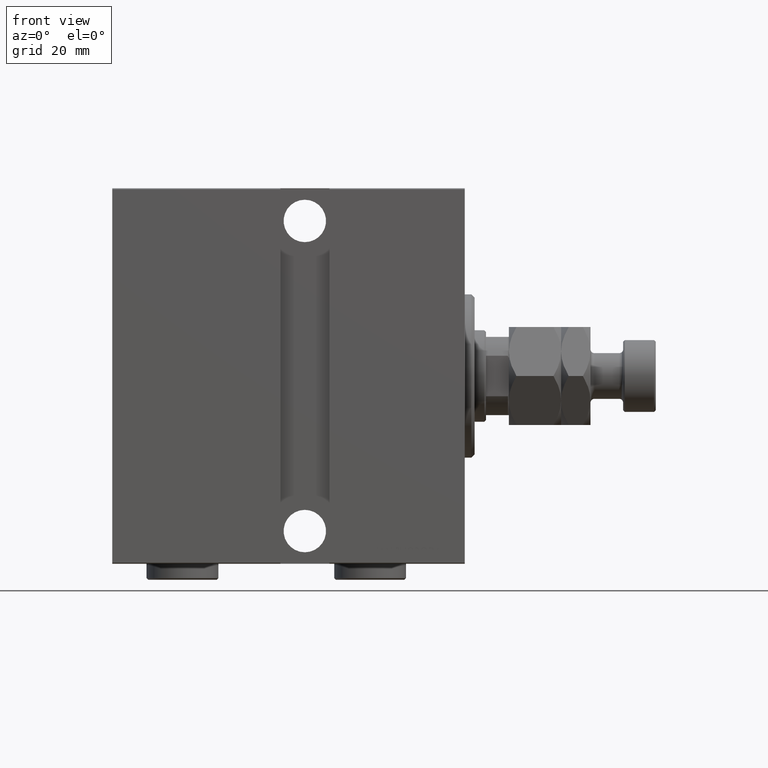
[diagram: clean part render]
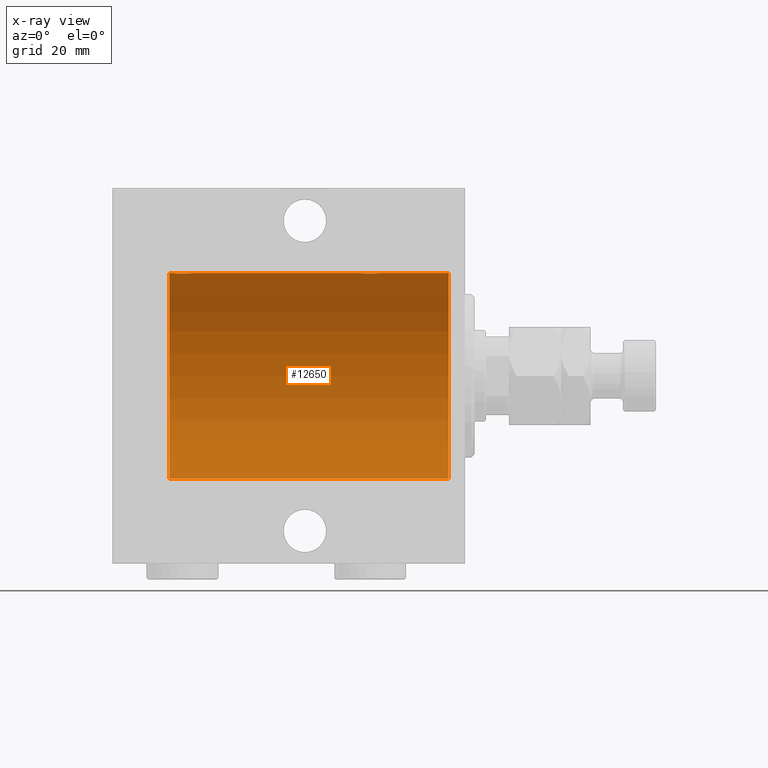
[diagram: x-ray — body ghosted, one internal face saturated and labeled with its STEP entity id]
A machine part, front view, then the same camera in x-ray: the body is ghosted and one INTERNAL B-rep face — a face not visible from any outside direction — is saturated and labeled: STEP entity #12650.
In plain terms, the highlighted cylindrical surface (partial cylindrical patch) has radius 31.5 mm, axis along (1, 0, -0).
Its self-contained STEP definition (entity closure, byte-faithful):
#141 = CARTESIAN_POINT ( 'NONE',  ( 86.69582294439439352, -3.000152387858501690, 31.35680286115500337 ) ) ;
#739 = VERTEX_POINT ( 'NONE', #43214 ) ;
#1024 = EDGE_CURVE ( 'NONE', #44973, #27381, #12822, .T. ) ;
#1679 = CARTESIAN_POINT ( 'NONE',  ( 27.16956308512997964, -2.384935707362441537, 31.40977595730572958 ) ) ;
#1690 = EDGE_CURVE ( 'NONE', #20167, #27381, #34671, .T. ) ;
#1909 = CARTESIAN_POINT ( 'NONE',  ( 26.61498557723073333, -1.830470878313879668, 31.44719957596828763 ) ) ;
#2509 = B_SPLINE_CURVE_WITH_KNOTS ( 'NONE', 3,
 ( #4477, #43338, #11648, #18612, #44238, #4932, #22993, #1909, #32922, #32700, #1679, #30141, #15814, #33374, #40550, #26678, #15126, #29240, #18835, #19066, #44014, #12334, #29686, #16046, #39868, #36157, #12102, #8178, #33147, #40098, #15584, #12558 ),
 .UNSPECIFIED., .F., .F.,
 ( 4, 2, 2, 2, 2, 2, 2, 2, 2, 2, 2, 2, 2, 2, 2, 4 ),
 ( 0.009384682587134636142, 0.009971088165454035368, 0.01055749374377343633, 0.01114389932209283729, 0.01173030490041223652, 0.01231671047873163748, 0.01290311605705103844, 0.01348952163537044113, 0.01407592721368984209, 0.01466233279200924305, 0.01524873837032864402, 0.01583514394864804498, 0.01642154952696744594, 0.01700795510528684690, 0.01759436068360624786, 0.01876717184024504284 ),
 .UNSPECIFIED. ) ;
#3372 = CARTESIAN_POINT ( 'NONE',  ( 83.49999999999998579, -2.116947682205846230E-23, 31.50000000000000000 ) ) ;
#3613 = DIRECTION ( 'NONE',  ( -1.000000000000000000, -0.000000000000000000, -0.000000000000000000 ) ) ;
#4477 = CARTESIAN_POINT ( 'NONE',  ( 26.00000000000000355, -2.117263226567934635E-23, 31.50000000000000000 ) ) ;
#4819 = ORIENTED_EDGE ( 'NONE', *, *, #29458, .T. ) ;
#4932 = CARTESIAN_POINT ( 'NONE',  ( 26.30285761163299441, -1.328004386210307919, 31.47251238182140298 ) ) ;
#4969 = EDGE_LOOP ( 'NONE', ( #37711, #39705, #18812, #43573, #4819, #11709, #35675, #14820 ) ) ;
#5383 = CARTESIAN_POINT ( 'NONE',  ( 89.19529642359012200, -1.331741824817668673, 31.47235367475394341 ) ) ;
#7087 = CARTESIAN_POINT ( 'NONE',  ( 84.99543714992999810, -2.602826974226411849, 31.39247100434485560 ) ) ;
#7784 = VECTOR ( 'NONE', #24029, 1000.000000000000000 ) ;
#8178 = CARTESIAN_POINT ( 'NONE',  ( 31.60192140439154684, -1.506272792558327467, 31.46439306106696421 ) ) ;
#9231 = EDGE_CURVE ( 'NONE', #21949, #13310, #30937, .T. ) ;
#9865 = CARTESIAN_POINT ( 'NONE',  ( 88.32704225370268603, -2.387531469909783599, 31.40957782495775419 ) ) ;
#10532 = LINE ( 'NONE', #41768, #44968 ) ;
#10550 = CARTESIAN_POINT ( 'NONE',  ( 83.89582218725267637, -1.502389880413007806, 31.46458023642405166 ) ) ;
#11026 = CARTESIAN_POINT ( 'NONE',  ( 89.42020662950044141, -0.7905881588836197738, 31.49214662150070509 ) ) ;
#11648 = CARTESIAN_POINT ( 'NONE',  ( 26.01898490608483527, -0.3904857149112059278, 31.49817436802766224 ) ) ;
#11709 = ORIENTED_EDGE ( 'NONE', *, *, #9231, .F. ) ;
#11824 = EDGE_CURVE ( 'NONE', #21949, #12904, #28368, .T. ) ;
#12102 = CARTESIAN_POINT ( 'NONE',  ( 31.38246872266632082, -1.833765390051044220, 31.44700610425690712 ) ) ;
#12334 = CARTESIAN_POINT ( 'NONE',  ( 30.32865414687508832, -2.696917666262911961, 31.38442820068732075 ) ) ;
#12558 = CARTESIAN_POINT ( 'NONE',  ( 32.00000000000000000, -2.212280765433387153E-16, 31.50000000000000000 ) ) ;
#12650 = ADVANCED_FACE ( 'NONE', ( #35304 ), #39020, .F. ) ;
#12822 = CIRCLE ( 'NONE', #16538, 31.50000000000000000 ) ;
#12904 = VERTEX_POINT ( 'NONE', #44023 ) ;
#13310 = VERTEX_POINT ( 'NONE', #27252 ) ;
#13333 = CARTESIAN_POINT ( 'NONE',  ( 85.53055544341474103, -2.845838211243347793, 31.37127560316186603 ) ) ;
#13426 = VECTOR ( 'NONE', #32137, 1000.000000000000000 ) ;
#13557 = CARTESIAN_POINT ( 'NONE',  ( 83.80285761163298730, -1.328004386210312138, 31.47251238182140298 ) ) ;
#14260 = CARTESIAN_POINT ( 'NONE',  ( 87.46515729810640494, -2.847307171789049018, 31.37114183851420179 ) ) ;
#14820 = ORIENTED_EDGE ( 'NONE', *, *, #33860, .F. ) ;
#15126 = CARTESIAN_POINT ( 'NONE',  ( 28.79953541025905395, -2.999845816735302151, 31.35683219171744796 ) ) ;
#15584 = CARTESIAN_POINT ( 'NONE',  ( 32.00000000000000000, -0.3965830985361757932, 31.50000000000000711 ) ) ;
#15775 = DIRECTION ( 'NONE',  ( -1.000000000000000000, 0.000000000000000000, 0.000000000000000000 ) ) ;
#15814 = CARTESIAN_POINT ( 'NONE',  ( 27.66760041900836242, -2.695056442718537060, 31.38458855656185875 ) ) ;
#16046 = CARTESIAN_POINT ( 'NONE',  ( 30.82704225370269668, -2.387531469909775605, 31.40957782495775419 ) ) ;
#16538 = AXIS2_PLACEMENT_3D ( 'NONE', #18834, #31839, #43786 ) ;
#17344 = CARTESIAN_POINT ( 'NONE',  ( 90.50000000000000000, 0.000000000000000000, 31.50000000000000000 ) ) ;
#17510 = CARTESIAN_POINT ( 'NONE',  ( 83.49999999999998579, -0.1958045626907475578, 31.50000000000000000 ) ) ;
#17743 = CARTESIAN_POINT ( 'NONE',  ( 86.10465888999905815, -2.980257240990072276, 31.35872356503798031 ) ) ;
#17804 = CARTESIAN_POINT ( 'NONE',  ( 90.50000000000000000, 0.000000000000000000, 31.50000000000000000 ) ) ;
#18530 = EDGE_CURVE ( 'NONE', #739, #44973, #10532, .T. ) ;
#18612 = CARTESIAN_POINT ( 'NONE',  ( 26.09580549261944071, -0.7775502215293879082, 31.49099686045559565 ) ) ;
#18812 = ORIENTED_EDGE ( 'NONE', *, *, #1024, .T. ) ;
#18834 = CARTESIAN_POINT ( 'NONE',  ( 5.000000000000004441, 0.000000000000000000, 0.000000000000000000 ) ) ;
#18835 = CARTESIAN_POINT ( 'NONE',  ( 29.39114547339941907, -2.980809450819707163, 31.35867074198615967 ) ) ;
#19066 = CARTESIAN_POINT ( 'NONE',  ( 29.77469094434372465, -2.904836261170110845, 31.36579955910872997 ) ) ;
#19246 = VERTEX_POINT ( 'NONE', #41963 ) ;
#20167 = VERTEX_POINT ( 'NONE', #40333 ) ;
#20232 = VECTOR ( 'NONE', #31210, 1000.000000000000000 ) ;
#21220 = CARTESIAN_POINT ( 'NONE',  ( 85.16760041900836598, -2.695056442718549050, 31.38458855656186941 ) ) ;
#21467 = DIRECTION ( 'NONE',  ( 0.000000000000000000, 0.000000000000000000, 1.000000000000000000 ) ) ;
#21949 = VERTEX_POINT ( 'NONE', #24033 ) ;
#22991 = CARTESIAN_POINT ( 'NONE',  ( 88.75824501903265684, -1.984587626072078281, 31.43772577203671048 ) ) ;
#22993 = CARTESIAN_POINT ( 'NONE',  ( 26.39582218725271190, -1.502389880413000922, 31.46458023642405166 ) ) ;
#24029 = DIRECTION ( 'NONE',  ( -1.000000000000000000, -0.000000000000000000, -0.000000000000000000 ) ) ;
#24033 = CARTESIAN_POINT ( 'NONE',  ( 83.49999999999998579, -2.116947682205846230E-23, 31.50000000000000000 ) ) ;
#24934 = CARTESIAN_POINT ( 'NONE',  ( 84.51539640075333182, -2.258226318633794083, 31.41925597582825702 ) ) ;
#26678 = CARTESIAN_POINT ( 'NONE',  ( 28.60465888999905815, -2.980257240990060286, 31.35872356503798031 ) ) ;
#27252 = CARTESIAN_POINT ( 'NONE',  ( 32.00000000000000000, -2.212280765433387153E-16, 31.50000000000000000 ) ) ;
#27381 = VERTEX_POINT ( 'NONE', #42953 ) ;
#27455 = CARTESIAN_POINT ( 'NONE',  ( 87.27469094434370334, -2.904836261170119283, 31.36579955910872997 ) ) ;
#27567 = AXIS2_PLACEMENT_3D ( 'NONE', #32886, #15775, #32445 ) ;
#27680 = CARTESIAN_POINT ( 'NONE',  ( 84.23904537543869253, -1.981494824113336550, 31.43792153503157394 ) ) ;
#28147 = CARTESIAN_POINT ( 'NONE',  ( 83.59580549261940519, -0.7775502215293890185, 31.49099686045558144 ) ) ;
#28368 = B_SPLINE_CURVE_WITH_KNOTS ( 'NONE', 3,
 ( #3372, #17510, #45696, #28147, #30914, #13557, #10550, #45020, #27680, #24934, #38766, #7087, #21220, #13333, #35293, #17743, #31838, #141, #39010, #27455, #14260, #28380, #41559, #9865, #42948, #22991, #40548, #37061, #5383, #11026, #36838, #33603 ),
 .UNSPECIFIED., .F., .F.,
 ( 4, 2, 2, 2, 2, 2, 2, 2, 2, 2, 2, 2, 2, 2, 2, 4 ),
 ( 0.009384682587134656959, 0.009971088165454059654, 0.01055749374377346235, 0.01114389932209286505, 0.01173030490041226774, 0.01231671047873167044, 0.01290311605705107487, 0.01348952163537047583, 0.01407592721368988026, 0.01466233279200928122, 0.01524873837032868565, 0.01583514394864808661, 0.01642154952696749104, 0.01700795510528689200, 0.01759436068360629296, 0.01876717184024508447 ),
 .UNSPECIFIED. ) ;
#28380 = CARTESIAN_POINT ( 'NONE',  ( 87.82865414687509542, -2.696917666262918623, 31.38442820068732075 ) ) ;
#29240 = CARTESIAN_POINT ( 'NONE',  ( 29.19582294439440062, -3.000152387858491476, 31.35680286115500337 ) ) ;
#29458 = EDGE_CURVE ( 'NONE', #20167, #13310, #2509, .T. ) ;
#29686 = CARTESIAN_POINT ( 'NONE',  ( 30.50098156296147422, -2.604888532024794312, 31.39229907792057972 ) ) ;
#30141 = CARTESIAN_POINT ( 'NONE',  ( 27.49543714993000521, -2.602826974226399859, 31.39247100434484850 ) ) ;
#30914 = CARTESIAN_POINT ( 'NONE',  ( 83.65339536257499731, -0.9669616078782038437, 31.48567319468627446 ) ) ;
#30937 = LINE ( 'NONE', #45042, #7784 ) ;
#31210 = DIRECTION ( 'NONE',  ( -1.000000000000000000, -0.000000000000000000, -0.000000000000000000 ) ) ;
#31231 = CARTESIAN_POINT ( 'NONE',  ( 5.000000000000004441, 3.857637417314162689E-15, -31.50000000000000000 ) ) ;
#31430 = LINE ( 'NONE', #17804, #13426 ) ;
#31838 = CARTESIAN_POINT ( 'NONE',  ( 86.29953541025902553, -2.999845816735311921, 31.35683219171744796 ) ) ;
#31839 = DIRECTION ( 'NONE',  ( -1.000000000000000000, 0.000000000000000000, 0.000000000000000000 ) ) ;
#31999 = CIRCLE ( 'NONE', #27567, 31.50000000000000000 ) ;
#32137 = DIRECTION ( 'NONE',  ( -1.000000000000000000, -0.000000000000000000, -0.000000000000000000 ) ) ;
#32445 = DIRECTION ( 'NONE',  ( 0.000000000000000000, 0.000000000000000000, 1.000000000000000000 ) ) ;
#32700 = CARTESIAN_POINT ( 'NONE',  ( 27.01539640075336379, -2.258226318633789642, 31.41925597582827123 ) ) ;
#32886 = CARTESIAN_POINT ( 'NONE',  ( 90.50000000000000000, 0.000000000000000000, 0.000000000000000000 ) ) ;
#32922 = CARTESIAN_POINT ( 'NONE',  ( 26.73904537543871029, -1.981494824113332998, 31.43792153503156683 ) ) ;
#33147 = CARTESIAN_POINT ( 'NONE',  ( 31.69529642359011135, -1.331741824817660236, 31.47235367475394341 ) ) ;
#33374 = CARTESIAN_POINT ( 'NONE',  ( 28.03055544341478367, -2.845838211243338023, 31.37127560316188024 ) ) ;
#33603 = CARTESIAN_POINT ( 'NONE',  ( 89.50000000000000000, 3.986776180743416568E-16, 31.50000000000000000 ) ) ;
#33860 = EDGE_CURVE ( 'NONE', #19246, #12904, #31430, .T. ) ;
#34671 = LINE ( 'NONE', #17344, #20232 ) ;
#35293 = CARTESIAN_POINT ( 'NONE',  ( 85.72118087357677041, -2.903733559410701215, 31.36590199989303684 ) ) ;
#35304 = FACE_OUTER_BOUND ( 'NONE', #4969, .T. ) ;
#35506 = DIRECTION ( 'NONE',  ( -1.000000000000000000, -0.000000000000000000, -0.000000000000000000 ) ) ;
#35675 = ORIENTED_EDGE ( 'NONE', *, *, #11824, .T. ) ;
#36157 = CARTESIAN_POINT ( 'NONE',  ( 31.25824501903267461, -1.984587626072075617, 31.43772577203673180 ) ) ;
#36838 = CARTESIAN_POINT ( 'NONE',  ( 89.50000000000001421, -0.3965830985361756822, 31.50000000000000711 ) ) ;
#37061 = CARTESIAN_POINT ( 'NONE',  ( 89.10192140439156105, -1.506272792558331464, 31.46439306106695710 ) ) ;
#37409 = AXIS2_PLACEMENT_3D ( 'NONE', #45253, #3613, #21467 ) ;
#37711 = ORIENTED_EDGE ( 'NONE', *, *, #41487, .F. ) ;
#38766 = CARTESIAN_POINT ( 'NONE',  ( 84.66956308512999385, -2.384935707362453527, 31.40977595730572958 ) ) ;
#39010 = CARTESIAN_POINT ( 'NONE',  ( 86.89114547339940486, -2.980809450819716044, 31.35867074198615256 ) ) ;
#39020 = CYLINDRICAL_SURFACE ( 'NONE', #37409, 31.50000000000000000 ) ;
#39705 = ORIENTED_EDGE ( 'NONE', *, *, #18530, .T. ) ;
#39868 = CARTESIAN_POINT ( 'NONE',  ( 30.98143462873041543, -2.261012035264784004, 31.41905495618427935 ) ) ;
#40098 = CARTESIAN_POINT ( 'NONE',  ( 31.92020662950041654, -0.7905881588836122242, 31.49214662150069088 ) ) ;
#40333 = CARTESIAN_POINT ( 'NONE',  ( 26.00000000000000355, -2.117263226567934635E-23, 31.50000000000000000 ) ) ;
#40548 = CARTESIAN_POINT ( 'NONE',  ( 88.88246872266631726, -1.833765390051049549, 31.44700610425690002 ) ) ;
#40550 = CARTESIAN_POINT ( 'NONE',  ( 28.22118087357679528, -2.903733559410688336, 31.36590199989304395 ) ) ;
#41487 = EDGE_CURVE ( 'NONE', #739, #19246, #31999, .T. ) ;
#41559 = CARTESIAN_POINT ( 'NONE',  ( 88.00098156296147067, -2.604888532024803194, 31.39229907792057972 ) ) ;
#41768 = CARTESIAN_POINT ( 'NONE',  ( 90.50000000000000000, 3.857637417314162689E-15, -31.50000000000000000 ) ) ;
#41963 = CARTESIAN_POINT ( 'NONE',  ( 90.50000000000000000, 0.000000000000000000, 31.50000000000000000 ) ) ;
#42948 = CARTESIAN_POINT ( 'NONE',  ( 88.48143462873044029, -2.261012035264788445, 31.41905495618427935 ) ) ;
#42953 = CARTESIAN_POINT ( 'NONE',  ( 5.000000000000004441, 0.000000000000000000, 31.50000000000000000 ) ) ;
#43214 = CARTESIAN_POINT ( 'NONE',  ( 90.50000000000000000, 3.857637417314162689E-15, -31.50000000000000000 ) ) ;
#43338 = CARTESIAN_POINT ( 'NONE',  ( 26.00000000000000355, -0.1958045626907478631, 31.50000000000000000 ) ) ;
#43573 = ORIENTED_EDGE ( 'NONE', *, *, #1690, .F. ) ;
#43786 = DIRECTION ( 'NONE',  ( 0.000000000000000000, 0.000000000000000000, 1.000000000000000000 ) ) ;
#44014 = CARTESIAN_POINT ( 'NONE',  ( 29.96515729810639783, -2.847307171789040581, 31.37114183851420890 ) ) ;
#44023 = CARTESIAN_POINT ( 'NONE',  ( 89.50000000000000000, 3.986776180743416568E-16, 31.50000000000000000 ) ) ;
#44238 = CARTESIAN_POINT ( 'NONE',  ( 26.15339536257502218, -0.9669616078782009572, 31.48567319468626735 ) ) ;
#44968 = VECTOR ( 'NONE', #35506, 1000.000000000000000 ) ;
#44973 = VERTEX_POINT ( 'NONE', #31231 ) ;
#45020 = CARTESIAN_POINT ( 'NONE',  ( 84.11498557723074043, -1.830470878313888772, 31.44719957596829474 ) ) ;
#45042 = CARTESIAN_POINT ( 'NONE',  ( 90.50000000000000000, 0.000000000000000000, 31.50000000000000000 ) ) ;
#45253 = CARTESIAN_POINT ( 'NONE',  ( 90.50000000000000000, 0.000000000000000000, 0.000000000000000000 ) ) ;
#45696 = CARTESIAN_POINT ( 'NONE',  ( 83.51898490608482462, -0.3904857149112057613, 31.49817436802766935 ) ) ;